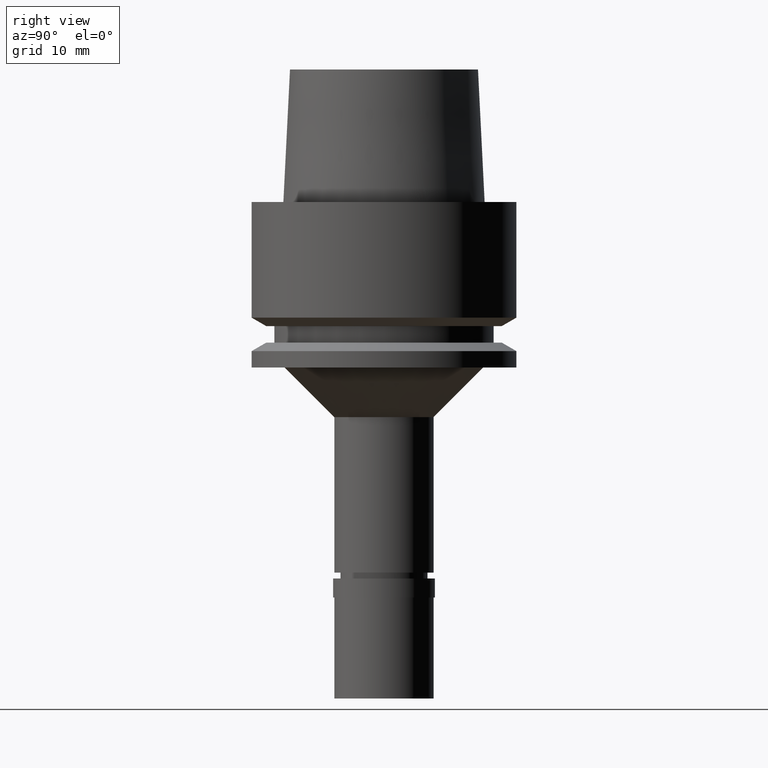
[diagram: clean part render]
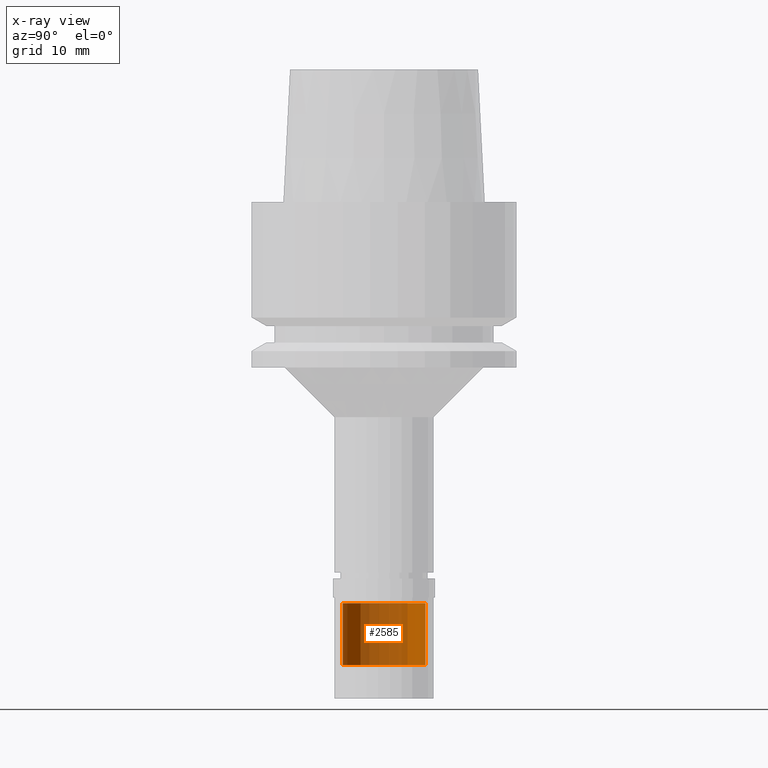
[diagram: x-ray — body ghosted, one internal face saturated and labeled with its STEP entity id]
A machine part, right view, then the same camera in x-ray: the body is ghosted and one INTERNAL B-rep face — a face not visible from any outside direction — is saturated and labeled: STEP entity #2585.
In plain terms, the highlighted cylindrical surface (partial cylindrical patch) has radius 5 mm, axis along (0, 0, 1).
Its self-contained STEP definition (entity closure, byte-faithful):
#25 = DIRECTION ( 'NONE',  ( 0.0000000000000000000, 0.0000000000000000000, -1.000000000000000000 ) ) ;
#186 = ORIENTED_EDGE ( 'NONE', *, *, #1608, .T. ) ;
#215 = CARTESIAN_POINT ( 'NONE',  ( 0.0000000000000000000, 0.0000000000000000000, -59.60000000000000142 ) ) ;
#339 = CARTESIAN_POINT ( 'NONE',  ( 0.0000000000000000000, 5.000000000000000000, -56.00000000000000000 ) ) ;
#359 = EDGE_CURVE ( 'NONE', #1270, #1143, #1247, .T. ) ;
#512 = AXIS2_PLACEMENT_3D ( 'NONE', #744, #2195, #1584 ) ;
#654 = ORIENTED_EDGE ( 'NONE', *, *, #359, .T. ) ;
#744 = CARTESIAN_POINT ( 'NONE',  ( 0.0000000000000000000, 0.0000000000000000000, -56.00000000000000000 ) ) ;
#800 = AXIS2_PLACEMENT_3D ( 'NONE', #2527, #25, #1496 ) ;
#904 = CARTESIAN_POINT ( 'NONE',  ( 0.0000000000000000000, -5.000000000000000000, -56.00000000000000000 ) ) ;
#1024 = ORIENTED_EDGE ( 'NONE', *, *, #1518, .T. ) ;
#1032 = DIRECTION ( 'NONE',  ( 0.0000000000000000000, 0.0000000000000000000, -1.000000000000000000 ) ) ;
#1105 = CYLINDRICAL_SURFACE ( 'NONE', #2507, 5.000000000000000000 ) ;
#1143 = VERTEX_POINT ( 'NONE', #904 ) ;
#1233 = CARTESIAN_POINT ( 'NONE',  ( 0.0000000000000000000, -5.000000000000000000, -48.50000000000000000 ) ) ;
#1246 = LINE ( 'NONE', #2271, #1464 ) ;
#1247 = CIRCLE ( 'NONE', #512, 5.000000000000000000 ) ;
#1270 = VERTEX_POINT ( 'NONE', #339 ) ;
#1389 = EDGE_LOOP ( 'NONE', ( #654, #1647, #1024, #186 ) ) ;
#1391 = VERTEX_POINT ( 'NONE', #1233 ) ;
#1457 = EDGE_CURVE ( 'NONE', #1391, #1143, #2093, .T. ) ;
#1464 = VECTOR ( 'NONE', #1032, 1000.000000000000000 ) ;
#1496 = DIRECTION ( 'NONE',  ( 0.0000000000000000000, -1.000000000000000000, 0.0000000000000000000 ) ) ;
#1511 = VERTEX_POINT ( 'NONE', #1879 ) ;
#1518 = EDGE_CURVE ( 'NONE', #1391, #1511, #1593, .T. ) ;
#1584 = DIRECTION ( 'NONE',  ( 0.0000000000000000000, 1.000000000000000000, 0.0000000000000000000 ) ) ;
#1593 = CIRCLE ( 'NONE', #800, 5.000000000000000000 ) ;
#1608 = EDGE_CURVE ( 'NONE', #1511, #1270, #1246, .T. ) ;
#1647 = ORIENTED_EDGE ( 'NONE', *, *, #1457, .F. ) ;
#1652 = DIRECTION ( 'NONE',  ( 0.0000000000000000000, 1.000000000000000000, 0.0000000000000000000 ) ) ;
#1681 = FACE_OUTER_BOUND ( 'NONE', #1389, .T. ) ;
#1687 = DIRECTION ( 'NONE',  ( 0.0000000000000000000, 0.0000000000000000000, -1.000000000000000000 ) ) ;
#1879 = CARTESIAN_POINT ( 'NONE',  ( 0.0000000000000000000, 5.000000000000000000, -48.50000000000000000 ) ) ;
#1905 = CARTESIAN_POINT ( 'NONE',  ( 0.0000000000000000000, -5.000000000000000000, -48.50000000000000000 ) ) ;
#2093 = LINE ( 'NONE', #1905, #2541 ) ;
#2195 = DIRECTION ( 'NONE',  ( 0.0000000000000000000, 0.0000000000000000000, 1.000000000000000000 ) ) ;
#2271 = CARTESIAN_POINT ( 'NONE',  ( 0.0000000000000000000, 5.000000000000000000, -48.50000000000000000 ) ) ;
#2507 = AXIS2_PLACEMENT_3D ( 'NONE', #215, #2553, #1652 ) ;
#2527 = CARTESIAN_POINT ( 'NONE',  ( 0.0000000000000000000, 0.0000000000000000000, -48.50000000000000000 ) ) ;
#2541 = VECTOR ( 'NONE', #1687, 1000.000000000000000 ) ;
#2553 = DIRECTION ( 'NONE',  ( 0.0000000000000000000, 0.0000000000000000000, 1.000000000000000000 ) ) ;
#2585 = ADVANCED_FACE ( 'NONE', ( #1681 ), #1105, .T. ) ;